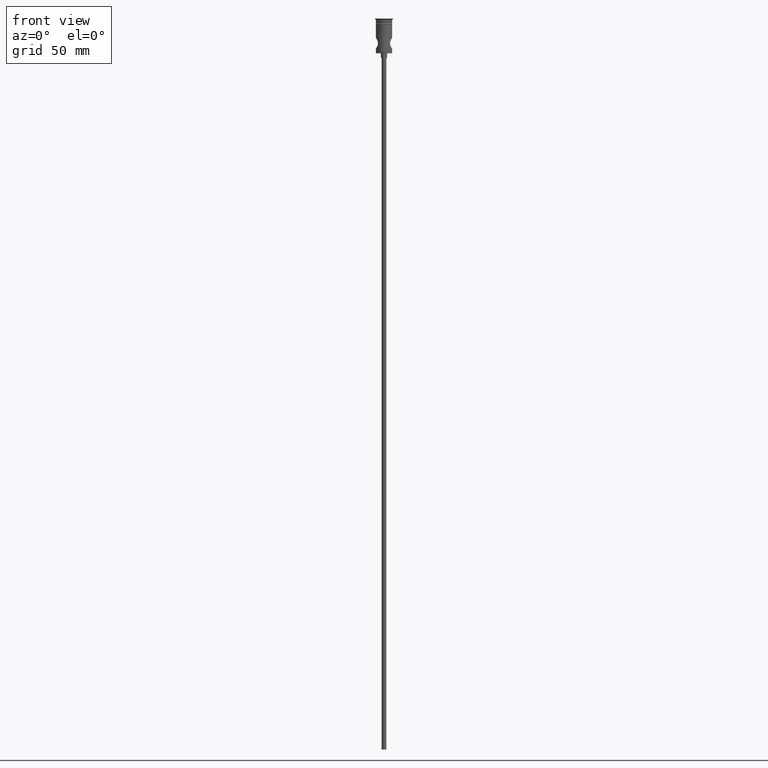
[diagram: clean part render]
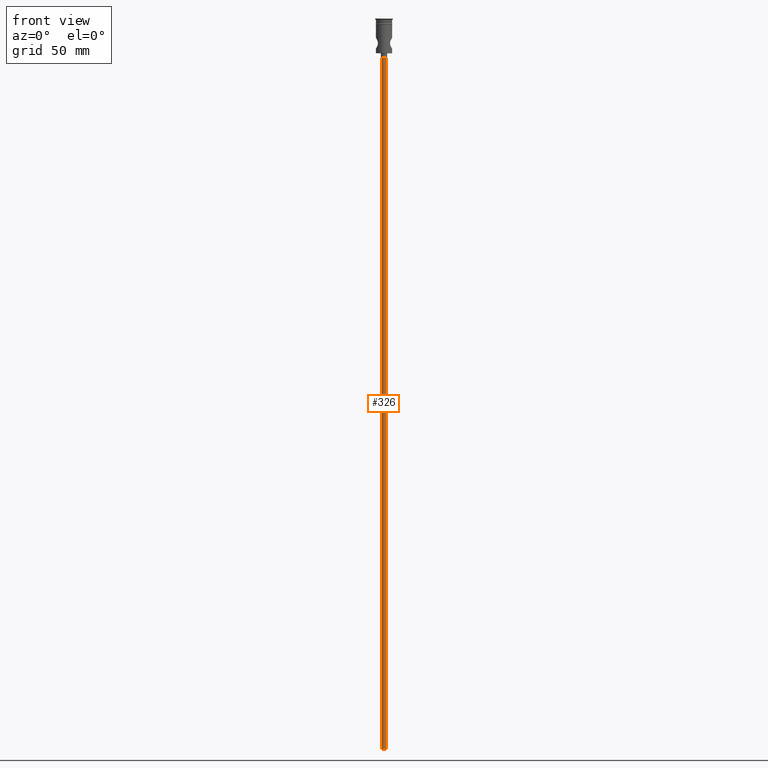
[diagram: same view with one face highlighted and labeled with its STEP entity id]
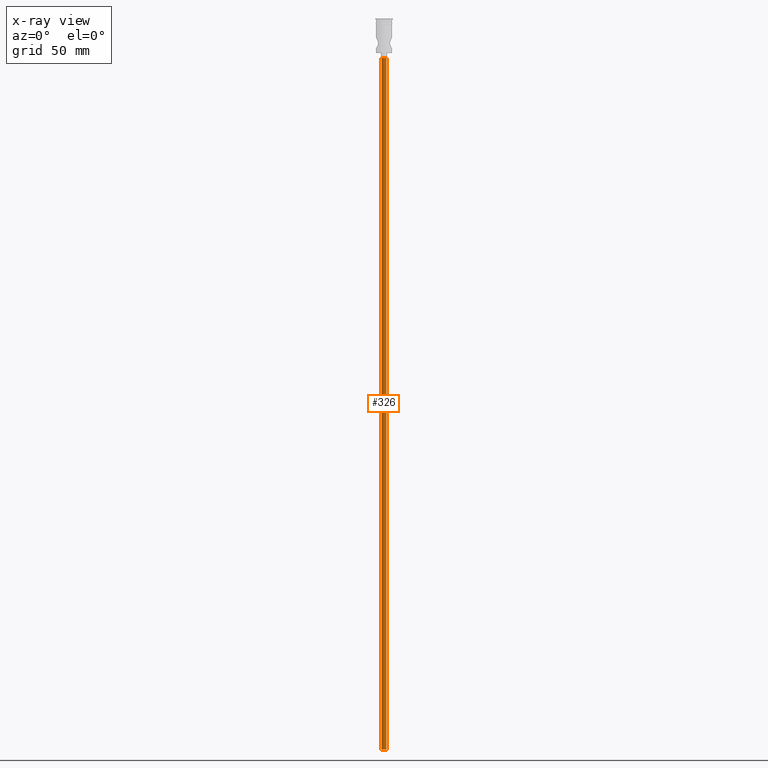
[diagram: x-ray of the same camera — body ghosted, the highlighted face saturated]
A machine part, front view. The second image highlights one B-rep face of the part: STEP entity #326.
The next image is the same camera in x-ray: the body ghosted, the highlighted face saturated — about 0% of this face is hidden behind the body in this view.
In plain terms, the highlighted cylindrical surface (edge-blend (fillet) strip) has radius 1.5 mm, axis along (-0, -0, 1).
Its self-contained STEP definition (entity closure, byte-faithful):
#37 = ORIENTED_EDGE ( 'NONE', *, *, #1328, .F. ) ;
#136 = CARTESIAN_POINT ( 'NONE',  ( -1.500000000000000222, 1.836970198721030181E-16, -472.5000000000000568 ) ) ;
#150 = CARTESIAN_POINT ( 'NONE',  ( 0.000000000000000000, 0.000000000000000000, -472.5000000000000568 ) ) ;
#223 = DIRECTION ( 'NONE',  ( 0.000000000000000000, 0.000000000000000000, -1.000000000000000000 ) ) ;
#241 = EDGE_CURVE ( 'NONE', #1105, #1303, #1346, .T. ) ;
#326 = ADVANCED_FACE ( 'NONE', ( #453 ), #1146, .T. ) ;
#364 = CARTESIAN_POINT ( 'NONE',  ( 0.000000000000000000, 0.000000000000000000, -25.50000000000000000 ) ) ;
#372 = DIRECTION ( 'NONE',  ( -1.000000000000000000, 0.000000000000000000, 0.000000000000000000 ) ) ;
#437 = EDGE_CURVE ( 'NONE', #586, #1303, #793, .T. ) ;
#453 = FACE_OUTER_BOUND ( 'NONE', #990, .T. ) ;
#488 = AXIS2_PLACEMENT_3D ( 'NONE', #150, #1052, #714 ) ;
#546 = CARTESIAN_POINT ( 'NONE',  ( 1.500000000000000222, 0.000000000000000000, -472.5000000000000568 ) ) ;
#586 = VERTEX_POINT ( 'NONE', #941 ) ;
#609 = ORIENTED_EDGE ( 'NONE', *, *, #241, .F. ) ;
#618 = VECTOR ( 'NONE', #1001, 1000.000000000000000 ) ;
#672 = DIRECTION ( 'NONE',  ( -1.000000000000000000, 0.000000000000000000, 0.000000000000000000 ) ) ;
#698 = CARTESIAN_POINT ( 'NONE',  ( 1.500000000000000222, 0.000000000000000000, -472.5000000000000568 ) ) ;
#714 = DIRECTION ( 'NONE',  ( 1.000000000000000000, 0.000000000000000000, 0.000000000000000000 ) ) ;
#767 = LINE ( 'NONE', #546, #618 ) ;
#793 = CIRCLE ( 'NONE', #872, 1.500000000000000222 ) ;
#804 = DIRECTION ( 'NONE',  ( 0.000000000000000000, 0.000000000000000000, -1.000000000000000000 ) ) ;
#864 = ORIENTED_EDGE ( 'NONE', *, *, #1401, .T. ) ;
#872 = AXIS2_PLACEMENT_3D ( 'NONE', #364, #804, #372 ) ;
#880 = CARTESIAN_POINT ( 'NONE',  ( -1.500000000000000222, 1.836970198721030181E-16, -472.5000000000000568 ) ) ;
#941 = CARTESIAN_POINT ( 'NONE',  ( 1.500000000000000222, 0.000000000000000000, -25.50000000000000000 ) ) ;
#990 = EDGE_LOOP ( 'NONE', ( #609, #37, #864, #1078 ) ) ;
#1001 = DIRECTION ( 'NONE',  ( -0.000000000000000000, -0.000000000000000000, 1.000000000000000000 ) ) ;
#1035 = VECTOR ( 'NONE', #1262, 1000.000000000000000 ) ;
#1052 = DIRECTION ( 'NONE',  ( -0.000000000000000000, -0.000000000000000000, 1.000000000000000000 ) ) ;
#1078 = ORIENTED_EDGE ( 'NONE', *, *, #437, .T. ) ;
#1105 = VERTEX_POINT ( 'NONE', #880 ) ;
#1146 = CYLINDRICAL_SURFACE ( 'NONE', #488, 1.500000000000000222 ) ;
#1207 = CIRCLE ( 'NONE', #1334, 1.500000000000000222 ) ;
#1218 = VERTEX_POINT ( 'NONE', #698 ) ;
#1262 = DIRECTION ( 'NONE',  ( -0.000000000000000000, -0.000000000000000000, 1.000000000000000000 ) ) ;
#1303 = VERTEX_POINT ( 'NONE', #1329 ) ;
#1328 = EDGE_CURVE ( 'NONE', #1218, #1105, #1207, .T. ) ;
#1329 = CARTESIAN_POINT ( 'NONE',  ( -1.500000000000000222, 1.836970198721030181E-16, -25.50000000000000000 ) ) ;
#1334 = AXIS2_PLACEMENT_3D ( 'NONE', #1411, #223, #672 ) ;
#1346 = LINE ( 'NONE', #136, #1035 ) ;
#1401 = EDGE_CURVE ( 'NONE', #1218, #586, #767, .T. ) ;
#1411 = CARTESIAN_POINT ( 'NONE',  ( 0.000000000000000000, 0.000000000000000000, -472.5000000000000568 ) ) ;